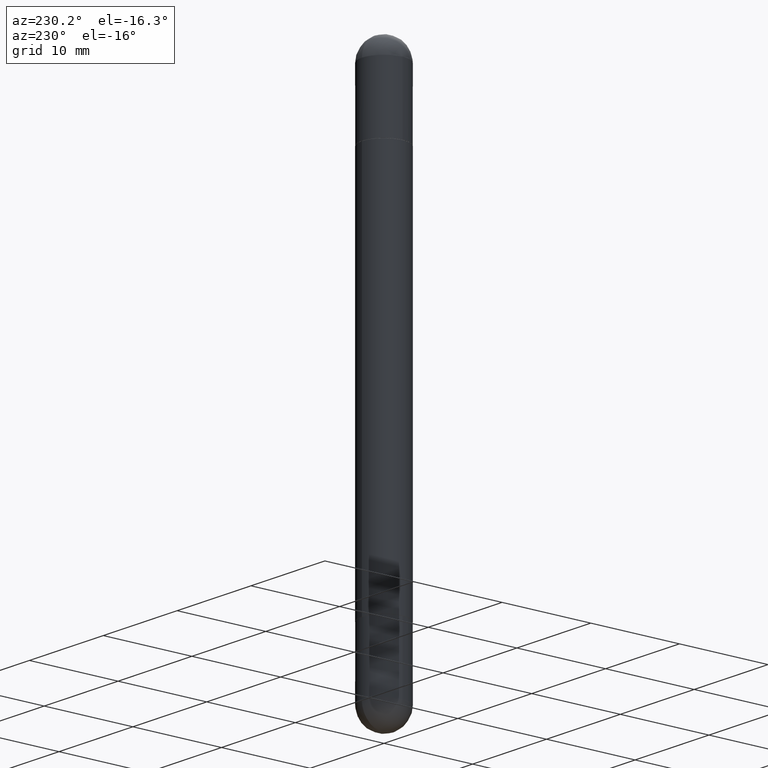
[diagram: clean part render]
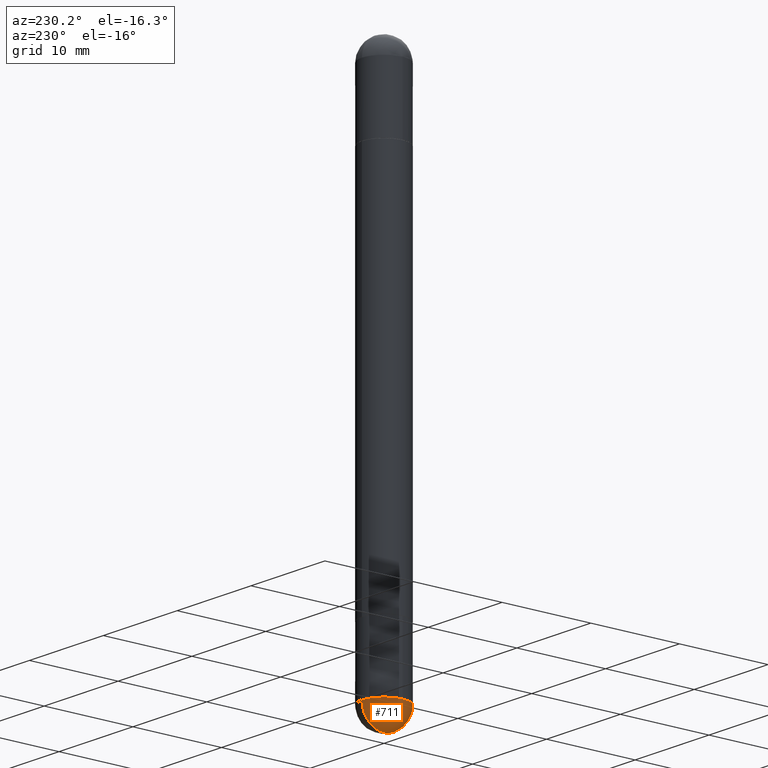
[diagram: same view with one face highlighted and labeled with its STEP entity id]
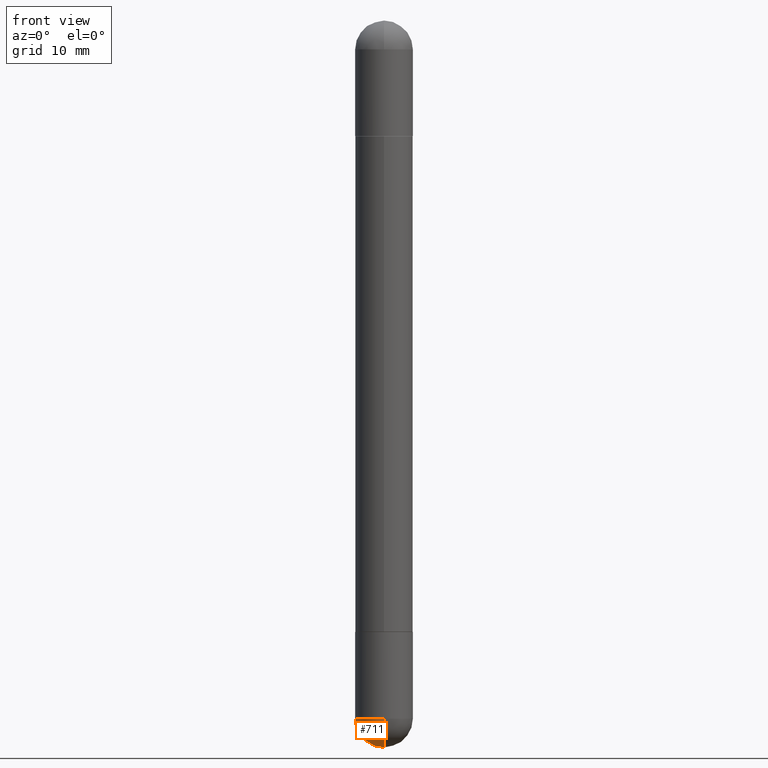
[diagram: same view with one face highlighted and labeled with its STEP entity id]
A machine part, auxiliary view. The second image highlights one B-rep face of the part: STEP entity #711.
A second angle (front view) of the same face is appended — the face is thin or edge-on in the first view.
In plain terms, the highlighted spherical surface has radius 2.5006 mm.
Its self-contained STEP definition (entity closure, byte-faithful):
#16 = CARTESIAN_POINT ( 'NONE',  ( 5.824739876012068780E-29, -8.316184826923546689E-15, -2.381850000000000467 ) ) ;
#58 = CARTESIAN_POINT ( 'NONE',  ( 5.493620098098182533E-29, -8.790367195063598563E-15, -2.381850000000000467 ) ) ;
#59 = CARTESIAN_POINT ( 'NONE',  ( 5.738586058125595532E-29, -9.128075209003904434E-15, -2.480300000000001059 ) ) ;
#91 = AXIS2_PLACEMENT_3D ( 'NONE', #314, #424, #681 ) ;
#98 = EDGE_CURVE ( 'NONE', #322, #574, #733, .T. ) ;
#131 = CARTESIAN_POINT ( 'NONE',  ( -6.995293233557624958E-16, -0.09845000000000865559, -2.381850000000000023 ) ) ;
#142 = AXIS2_PLACEMENT_3D ( 'NONE', #58, #188, #805 ) ;
#188 = DIRECTION ( 'NONE',  ( -1.000000000000000000, 6.982962677686265922E-15, -4.883557194083112901E-29 ) ) ;
#244 = AXIS2_PLACEMENT_3D ( 'NONE', #414, #291, #743 ) ;
#252 = ORIENTED_EDGE ( 'NONE', *, *, #98, .F. ) ;
#274 = EDGE_CURVE ( 'NONE', #574, #675, #411, .T. ) ;
#288 = EDGE_LOOP ( 'NONE', ( #523, #378, #765, #252 ) ) ;
#291 = DIRECTION ( 'NONE',  ( 1.000000000000000000, -6.982962677686265922E-15, 4.883557194083112340E-29 ) ) ;
#314 = CARTESIAN_POINT ( 'NONE',  ( 5.824739876012068780E-29, -8.316184826923546689E-15, -2.381850000000000467 ) ) ;
#322 = VERTEX_POINT ( 'NONE', #431 ) ;
#378 = ORIENTED_EDGE ( 'NONE', *, *, #797, .T. ) ;
#401 = DIRECTION ( 'NONE',  ( -2.445468806185136597E-29, 3.491481338843145583E-15, 1.000000000000000000 ) ) ;
#411 = CIRCLE ( 'NONE', #91, 0.09845000000000000973 ) ;
#414 = CARTESIAN_POINT ( 'NONE',  ( 5.493620098098182533E-29, -8.790367195063598563E-15, -2.381850000000000467 ) ) ;
#422 = EDGE_CURVE ( 'NONE', #434, #322, #682, .T. ) ;
#424 = DIRECTION ( 'NONE',  ( -2.445468806185136597E-29, 3.491481338843145583E-15, 1.000000000000000000 ) ) ;
#431 = CARTESIAN_POINT ( 'NONE',  ( 6.874726756182700483E-16, 0.09844999999999154427, -2.381850000000000911 ) ) ;
#434 = VERTEX_POINT ( 'NONE', #59 ) ;
#468 = CIRCLE ( 'NONE', #570, 0.09845000000000017626 ) ;
#523 = ORIENTED_EDGE ( 'NONE', *, *, #422, .F. ) ;
#559 = DIRECTION ( 'NONE',  ( -1.000000000000000000, 7.105427357601001070E-15, -4.926315508542082329E-29 ) ) ;
#570 = AXIS2_PLACEMENT_3D ( 'NONE', #746, #559, #759 ) ;
#571 = DIRECTION ( 'NONE',  ( 1.000000000000000000, -6.982962677686273810E-15, 0.000000000000000000 ) ) ;
#574 = VERTEX_POINT ( 'NONE', #641 ) ;
#621 = FACE_OUTER_BOUND ( 'NONE', #288, .T. ) ;
#641 = CARTESIAN_POINT ( 'NONE',  ( -0.09845000000000000973, -7.101225570921009731E-15, -2.381850000000000467 ) ) ;
#675 = VERTEX_POINT ( 'NONE', #131 ) ;
#681 = DIRECTION ( 'NONE',  ( 1.000000000000000000, -6.982962677686273810E-15, 0.000000000000000000 ) ) ;
#682 = CIRCLE ( 'NONE', #244, 0.09845000000000017626 ) ;
#702 = AXIS2_PLACEMENT_3D ( 'NONE', #16, #401, #571 ) ;
#711 = ADVANCED_FACE ( 'NONE', ( #621 ), #757, .T. ) ;
#733 = CIRCLE ( 'NONE', #702, 0.09845000000000000973 ) ;
#743 = DIRECTION ( 'NONE',  ( 6.982962677686265922E-15, 1.000000000000000000, 0.000000000000000000 ) ) ;
#746 = CARTESIAN_POINT ( 'NONE',  ( 5.493620098098182533E-29, -8.790367195063598563E-15, -2.381850000000000467 ) ) ;
#757 = SPHERICAL_SURFACE ( 'NONE', #142, 0.09845000000000017626 ) ;
#759 = DIRECTION ( 'NONE',  ( -7.105427357601001070E-15, -1.000000000000000000, 0.000000000000000000 ) ) ;
#765 = ORIENTED_EDGE ( 'NONE', *, *, #274, .F. ) ;
#797 = EDGE_CURVE ( 'NONE', #434, #675, #468, .T. ) ;
#805 = DIRECTION ( 'NONE',  ( 6.982962677686265922E-15, 1.000000000000000000, -2.774858297271973643E-15 ) ) ;